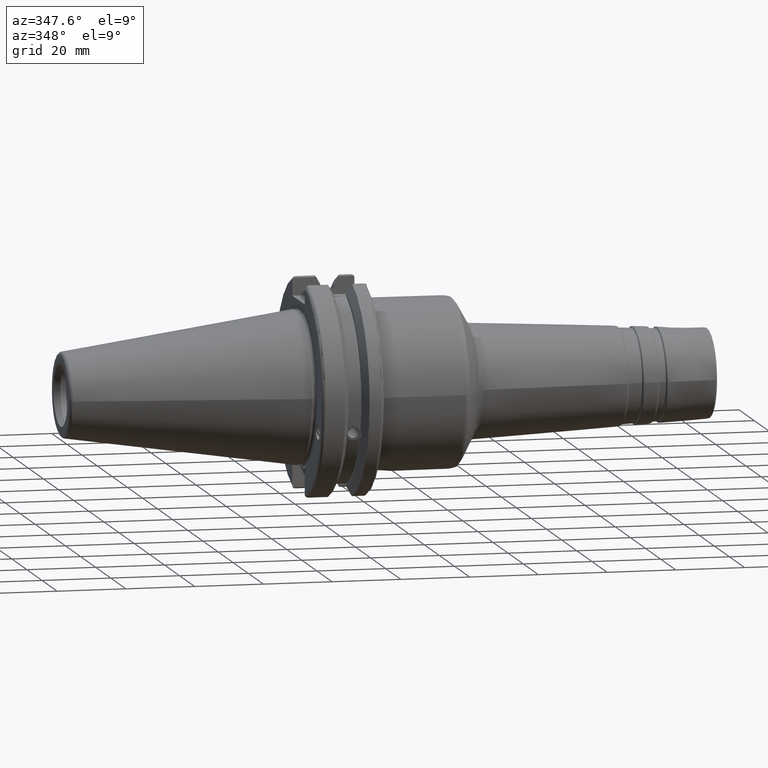
[diagram: clean part render]
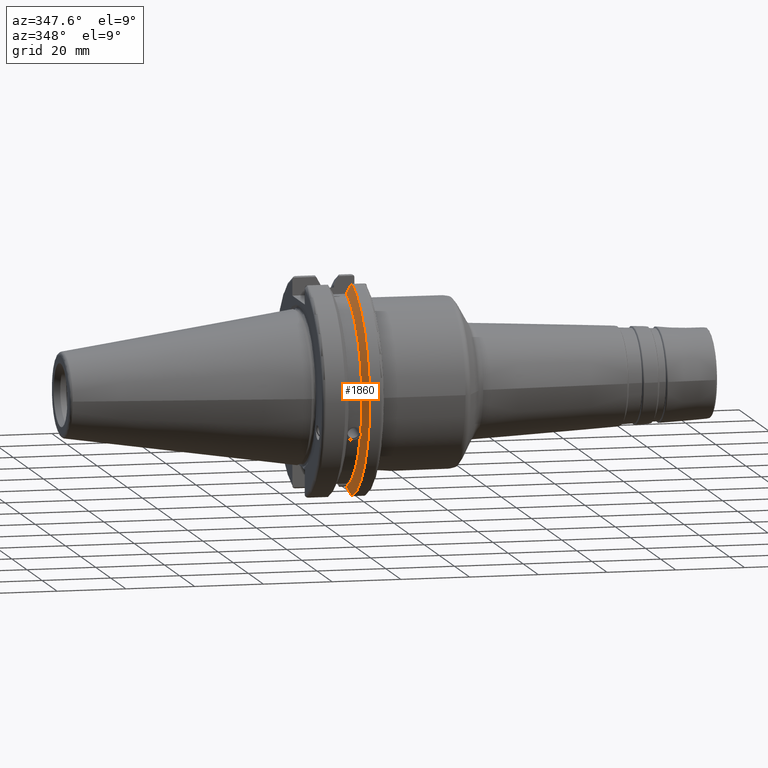
[diagram: same view with one face highlighted and labeled with its STEP entity id]
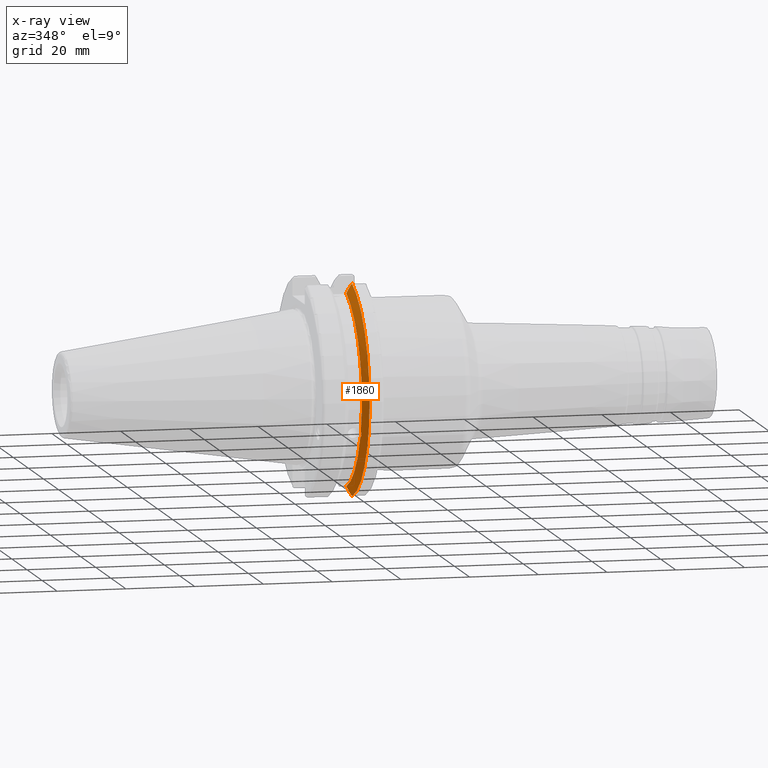
[diagram: x-ray of the same camera — body ghosted, the highlighted face saturated]
A machine part, auxiliary view. The second image highlights one B-rep face of the part: STEP entity #1860.
The next image is the same camera in x-ray: the body ghosted, the highlighted face saturated — about 0% of this face is hidden behind the body in this view.
In plain terms, the highlighted conical surface has half-angle 60 deg.
Its self-contained STEP definition (entity closure, byte-faithful):
#15=(
BOUNDED_CURVE()
B_SPLINE_CURVE(2,(#3253,#3254,#3255),.UNSPECIFIED.,.F.,.F.)
B_SPLINE_CURVE_WITH_KNOTS((3,3),(0.,0.276549142796805),.UNSPECIFIED.)
CURVE()
GEOMETRIC_REPRESENTATION_ITEM()
RATIONAL_B_SPLINE_CURVE((1.,1.00095203904186,1.00031614445102))
REPRESENTATION_ITEM('')
);
#16=(
BOUNDED_CURVE()
B_SPLINE_CURVE(2,(#3257,#3258,#3259),.UNSPECIFIED.,.F.,.F.)
B_SPLINE_CURVE_WITH_KNOTS((3,3),(0.,0.0639048713676002),.UNSPECIFIED.)
CURVE()
GEOMETRIC_REPRESENTATION_ITEM()
RATIONAL_B_SPLINE_CURVE((1.,1.0002844421828,1.00047644010568))
REPRESENTATION_ITEM('')
);
#17=(
BOUNDED_CURVE()
B_SPLINE_CURVE(2,(#3263,#3264,#3265),.UNSPECIFIED.,.F.,.F.)
B_SPLINE_CURVE_WITH_KNOTS((3,3),(0.329353533631192,0.393258405001023),
 .UNSPECIFIED.)
CURVE()
GEOMETRIC_REPRESENTATION_ITEM()
RATIONAL_B_SPLINE_CURVE((1.00047644010581,1.00028444218288,1.))
REPRESENTATION_ITEM('')
);
#18=(
BOUNDED_CURVE()
B_SPLINE_CURVE(2,(#3267,#3268,#3269),.UNSPECIFIED.,.F.,.F.)
B_SPLINE_CURVE_WITH_KNOTS((3,3),(0.0550586467390284,0.331607789535849),
 .UNSPECIFIED.)
CURVE()
GEOMETRIC_REPRESENTATION_ITEM()
RATIONAL_B_SPLINE_CURVE((1.00031614445116,1.00095203904229,1.))
REPRESENTATION_ITEM('')
);
#90=B_SPLINE_CURVE_WITH_KNOTS('',3,(#3160,#3161,#3162,#3163,#3164,#3165,
#3166,#3167),.UNSPECIFIED.,.F.,.F.,(4,2,2,4),(0.451995700189026,0.46454782854766,
0.504528771685166,0.544509714822671),.UNSPECIFIED.);
#94=B_SPLINE_CURVE_WITH_KNOTS('',3,(#3222,#3223,#3224,#3225,#3226,#3227,
#3228,#3229),.UNSPECIFIED.,.F.,.F.,(4,2,2,4),(0.544509714822671,0.584490657960176,
0.624471601097681,0.637023729456314),.UNSPECIFIED.);
#365=CONICAL_SURFACE('',#2074,30.3546886482472,1.0471975511966);
#419=FACE_OUTER_BOUND('',#532,.T.);
#532=EDGE_LOOP('',(#1454,#1455,#1456,#1457,#1458,#1459,#1460,#1461,#1462));
#679=CIRCLE('',#2075,28.9593772964944);
#680=CIRCLE('',#2076,31.75);
#681=CIRCLE('',#2077,28.9593772964944);
#810=VERTEX_POINT('',#3157);
#811=VERTEX_POINT('',#3159);
#818=VERTEX_POINT('',#3220);
#824=VERTEX_POINT('',#3250);
#825=VERTEX_POINT('',#3252);
#826=VERTEX_POINT('',#3256);
#827=VERTEX_POINT('',#3260);
#828=VERTEX_POINT('',#3262);
#829=VERTEX_POINT('',#3266);
#1039=EDGE_CURVE('',#811,#810,#90,.T.);
#1047=EDGE_CURVE('',#810,#818,#94,.T.);
#1056=EDGE_CURVE('',#818,#824,#679,.T.);
#1057=EDGE_CURVE('',#824,#825,#15,.T.);
#1058=EDGE_CURVE('',#826,#825,#16,.T.);
#1059=EDGE_CURVE('',#827,#826,#680,.T.);
#1060=EDGE_CURVE('',#828,#827,#17,.T.);
#1061=EDGE_CURVE('',#828,#829,#18,.T.);
#1062=EDGE_CURVE('',#829,#811,#681,.T.);
#1454=ORIENTED_EDGE('',*,*,#1039,.T.);
#1455=ORIENTED_EDGE('',*,*,#1047,.T.);
#1456=ORIENTED_EDGE('',*,*,#1056,.T.);
#1457=ORIENTED_EDGE('',*,*,#1057,.T.);
#1458=ORIENTED_EDGE('',*,*,#1058,.F.);
#1459=ORIENTED_EDGE('',*,*,#1059,.F.);
#1460=ORIENTED_EDGE('',*,*,#1060,.F.);
#1461=ORIENTED_EDGE('',*,*,#1061,.T.);
#1462=ORIENTED_EDGE('',*,*,#1062,.T.);
#1860=ADVANCED_FACE('',(#419),#365,.T.);
#2074=AXIS2_PLACEMENT_3D('',#3249,#2489,#2490);
#2075=AXIS2_PLACEMENT_3D('',#3251,#2491,#2492);
#2076=AXIS2_PLACEMENT_3D('',#3261,#2493,#2494);
#2077=AXIS2_PLACEMENT_3D('',#3270,#2495,#2496);
#2489=DIRECTION('center_axis',(1.,0.,0.));
#2490=DIRECTION('ref_axis',(0.,-1.,-1.22464679914735E-16));
#2491=DIRECTION('center_axis',(1.,0.,0.));
#2492=DIRECTION('ref_axis',(0.,0.,-1.));
#2493=DIRECTION('center_axis',(1.,0.,0.));
#2494=DIRECTION('ref_axis',(0.,0.,-1.));
#2495=DIRECTION('center_axis',(1.,0.,0.));
#2496=DIRECTION('ref_axis',(0.,0.,-1.));
#3157=CARTESIAN_POINT('',(13.276,-27.51401829017,-10.0142836826777));
#3159=CARTESIAN_POINT('',(13.091,-27.4956274489925,-9.09043478536249));
#3160=CARTESIAN_POINT('Ctrl Pts',(13.091,-27.4956274489925,-9.09043478536248));
#3161=CARTESIAN_POINT('Ctrl Pts',(13.1051204071996,-27.5087667900418,-9.12860597076219));
#3162=CARTESIAN_POINT('Ctrl Pts',(13.1185929817857,-27.5206055003512,-9.16696618806878));
#3163=CARTESIAN_POINT('Ctrl Pts',(13.171981441159,-27.5642934663232,-9.32791534028655));
#3164=CARTESIAN_POINT('Ctrl Pts',(13.2101197084175,-27.5867382255984,-9.46717946402648));
#3165=CARTESIAN_POINT('Ctrl Pts',(13.2623106446058,-27.5847569104122,-9.74771639360671));
#3166=CARTESIAN_POINT('Ctrl Pts',(13.276,-27.559599249844,-9.8890510252165));
#3167=CARTESIAN_POINT('Ctrl Pts',(13.276,-27.51401829017,-10.0142836826777));
#3220=CARTESIAN_POINT('',(13.091,-26.9060914640649,-10.710171591907));
#3222=CARTESIAN_POINT('Ctrl Pts',(13.276,-27.51401829017,-10.0142836826777));
#3223=CARTESIAN_POINT('Ctrl Pts',(13.276,-27.4684373304961,-10.139516340139));
#3224=CARTESIAN_POINT('Ctrl Pts',(13.2623106446058,-27.3968610665578,-10.2639559818059));
#3225=CARTESIAN_POINT('Ctrl Pts',(13.2101197084175,-27.2180531796526,-10.4801333026531));
#3226=CARTESIAN_POINT('Ctrl Pts',(13.171981441159,-27.1113422433189,-10.5723885976054));
#3227=CARTESIAN_POINT('Ctrl Pts',(13.1185929817857,-26.9744191989197,-10.6676007180673));
#3228=CARTESIAN_POINT('Ctrl Pts',(13.1051204071996,-26.9406927482839,-10.6893765730703));
#3229=CARTESIAN_POINT('Ctrl Pts',(13.091,-26.9060914640649,-10.7101715919071));
#3249=CARTESIAN_POINT('Origin',(13.8965833845378,0.,0.));
#3250=CARTESIAN_POINT('',(13.091,-8.19,-27.7771386827498));
#3251=CARTESIAN_POINT('Origin',(13.091,0.,0.));
#3252=CARTESIAN_POINT('',(14.4234146964874,-8.19,-30.1755016258903));
#3253=CARTESIAN_POINT('Ctrl Pts',(13.091,-8.19,-27.7771386827498));
#3254=CARTESIAN_POINT('Ctrl Pts',(13.7296364384735,-8.19,-28.9303689539659));
#3255=CARTESIAN_POINT('Ctrl Pts',(14.4234146964874,-8.19,-30.1755016258903));
#3256=CARTESIAN_POINT('',(14.7021667690756,-8.67204822802685,-30.5427254764662));
#3257=CARTESIAN_POINT('Ctrl Pts',(14.7021667690756,-8.67204822802686,-30.5427254764662));
#3258=CARTESIAN_POINT('Ctrl Pts',(14.5611085187837,-8.42917748262647,-30.357706789263));
#3259=CARTESIAN_POINT('Ctrl Pts',(14.4234146964874,-8.19,-30.1755016258903));
#3260=CARTESIAN_POINT('',(14.7021667690756,-8.67204822802685,30.5427254764662));
#3261=CARTESIAN_POINT('Origin',(14.7021667690756,0.,0.));
#3262=CARTESIAN_POINT('',(14.4234146964874,-8.19,30.1755016258903));
#3263=CARTESIAN_POINT('Ctrl Pts',(14.4234146964874,-8.19,30.1755016258903));
#3264=CARTESIAN_POINT('Ctrl Pts',(14.5611085187884,-8.42917748263466,30.3577067892692));
#3265=CARTESIAN_POINT('Ctrl Pts',(14.7021667690756,-8.67204822802685,30.5427254764662));
#3266=CARTESIAN_POINT('',(13.091,-8.19,27.7771386827498));
#3267=CARTESIAN_POINT('Ctrl Pts',(14.4234146964874,-8.19,30.1755016258903));
#3268=CARTESIAN_POINT('Ctrl Pts',(13.7296364384736,-8.19,28.9303689539661));
#3269=CARTESIAN_POINT('Ctrl Pts',(13.091,-8.19,27.7771386827498));
#3270=CARTESIAN_POINT('Origin',(13.091,0.,0.));